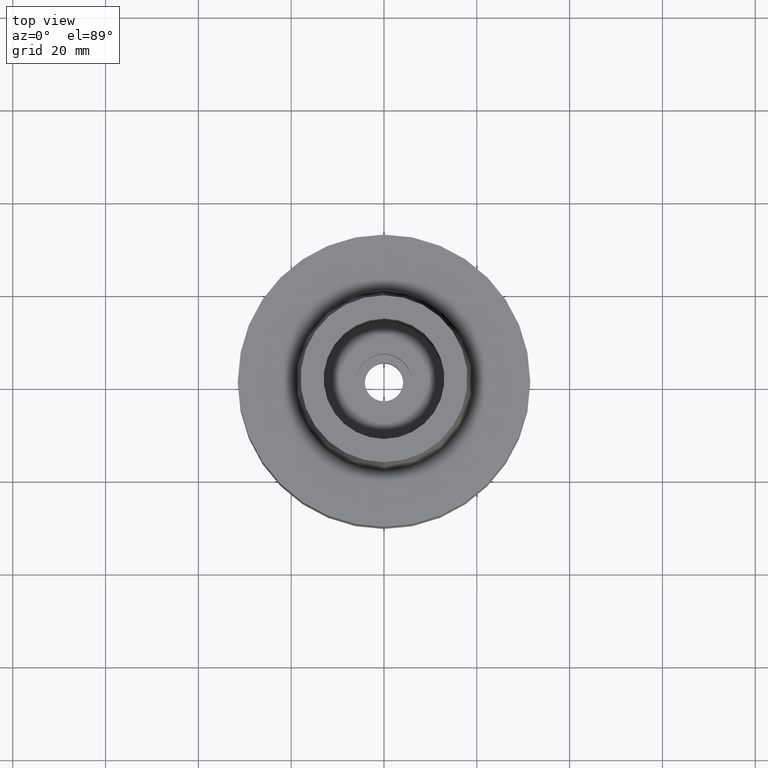
[diagram: clean part render]
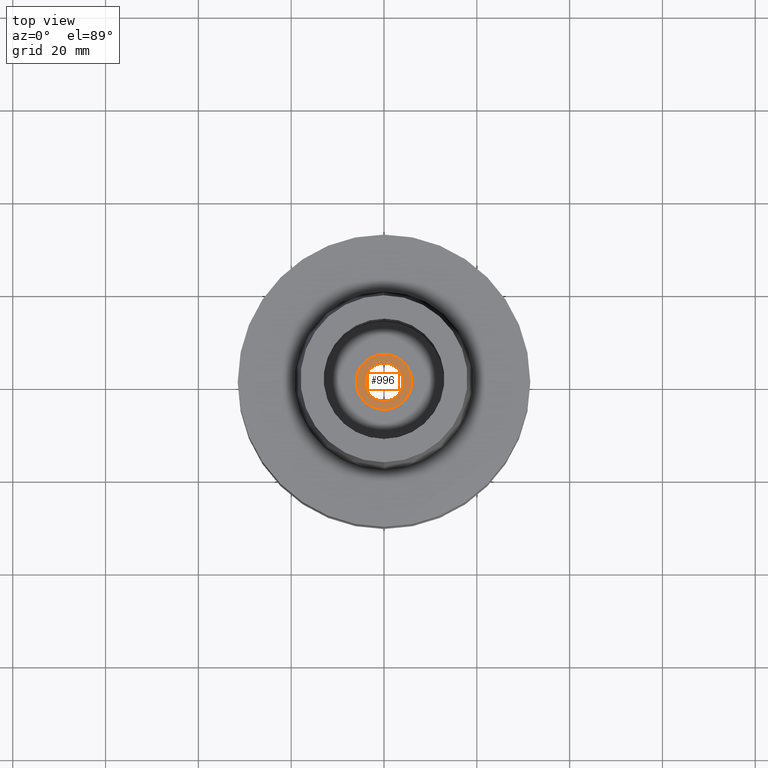
[diagram: same view with one face highlighted and labeled with its STEP entity id]
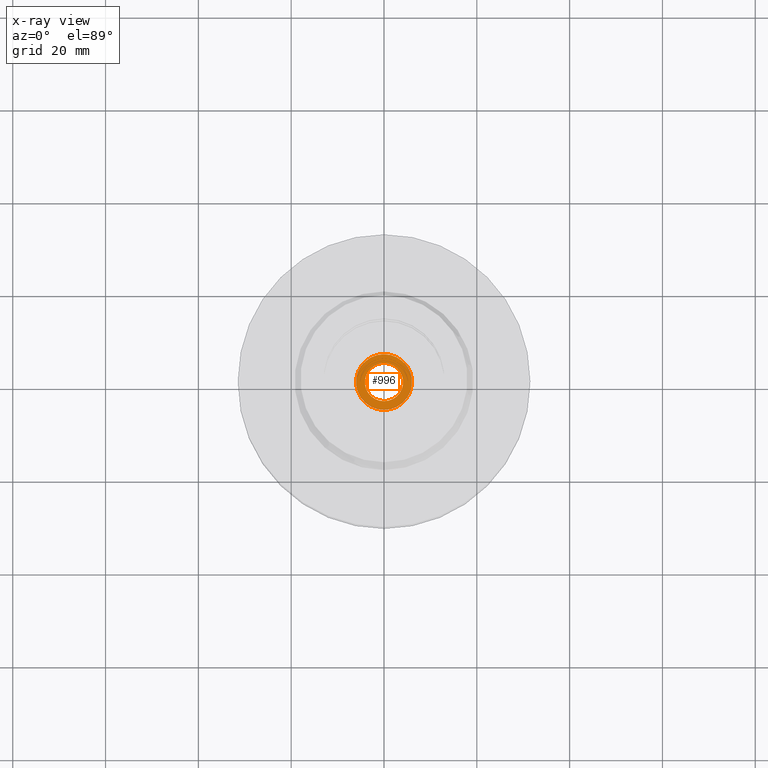
[diagram: x-ray of the same camera — body ghosted, the highlighted face saturated]
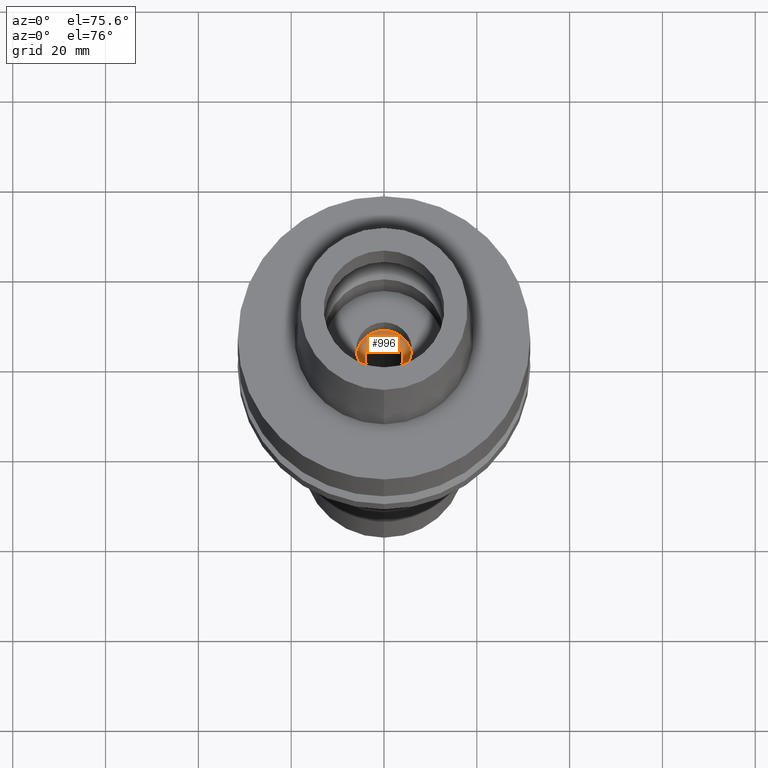
[diagram: same view with one face highlighted and labeled with its STEP entity id]
A machine part, top view. The second image highlights one B-rep face of the part: STEP entity #996.
The next image is the same camera in x-ray: the body ghosted, the highlighted face saturated — about 0% of this face is hidden behind the body in this view.
A second angle (auxiliary view) of the same face is appended — the face is thin or edge-on in the first view.
In plain terms, the highlighted planar face has unit normal (0, 0, 1).
Its self-contained STEP definition (entity closure, byte-faithful):
#56 = CIRCLE ( 'NONE', #1690, 4.125000000000000000 ) ;
#113 = CIRCLE ( 'NONE', #955, 6.000000000000000000 ) ;
#166 = DIRECTION ( 'NONE',  ( 0.0000000000000000000, 0.0000000000000000000, -1.000000000000000000 ) ) ;
#215 = DIRECTION ( 'NONE',  ( 0.0000000000000000000, 1.000000000000000000, 0.0000000000000000000 ) ) ;
#430 = ORIENTED_EDGE ( 'NONE', *, *, #561, .F. ) ;
#561 = EDGE_CURVE ( 'NONE', #859, #2364, #56, .T. ) ;
#700 = CARTESIAN_POINT ( 'NONE',  ( 0.0000000000000000000, -6.000000000000000000, -16.94999999999999929 ) ) ;
#777 = CARTESIAN_POINT ( 'NONE',  ( 0.0000000000000000000, 0.0000000000000000000, -16.94999999999999929 ) ) ;
#859 = VERTEX_POINT ( 'NONE', #1255 ) ;
#904 = DIRECTION ( 'NONE',  ( 1.000000000000000000, 0.0000000000000000000, 0.0000000000000000000 ) ) ;
#955 = AXIS2_PLACEMENT_3D ( 'NONE', #1945, #1318, #215 ) ;
#961 = EDGE_CURVE ( 'NONE', #2864, #2251, #113, .T. ) ;
#996 = ADVANCED_FACE ( 'NONE', ( #1984, #1728 ), #2428, .T. ) ;
#1026 = EDGE_LOOP ( 'NONE', ( #1595, #1059 ) ) ;
#1059 = ORIENTED_EDGE ( 'NONE', *, *, #1908, .F. ) ;
#1067 = DIRECTION ( 'NONE',  ( 0.0000000000000000000, -1.000000000000000000, 0.0000000000000000000 ) ) ;
#1141 = EDGE_LOOP ( 'NONE', ( #2022, #430 ) ) ;
#1255 = CARTESIAN_POINT ( 'NONE',  ( 0.0000000000000000000, -4.125000000000000000, -16.94999999999999929 ) ) ;
#1318 = DIRECTION ( 'NONE',  ( 0.0000000000000000000, 0.0000000000000000000, -1.000000000000000000 ) ) ;
#1333 = DIRECTION ( 'NONE',  ( 0.0000000000000000000, 0.0000000000000000000, 1.000000000000000000 ) ) ;
#1337 = EDGE_CURVE ( 'NONE', #2364, #859, #2176, .T. ) ;
#1397 = AXIS2_PLACEMENT_3D ( 'NONE', #2159, #166, #1067 ) ;
#1481 = DIRECTION ( 'NONE',  ( 0.0000000000000000000, 0.0000000000000000000, 1.000000000000000000 ) ) ;
#1595 = ORIENTED_EDGE ( 'NONE', *, *, #961, .F. ) ;
#1610 = DIRECTION ( 'NONE',  ( 0.0000000000000000000, 0.0000000000000000000, 1.000000000000000000 ) ) ;
#1690 = AXIS2_PLACEMENT_3D ( 'NONE', #777, #1610, #2049 ) ;
#1728 = FACE_BOUND ( 'NONE', #1141, .T. ) ;
#1770 = AXIS2_PLACEMENT_3D ( 'NONE', #1854, #1481, #1911 ) ;
#1854 = CARTESIAN_POINT ( 'NONE',  ( 0.0000000000000000000, 0.0000000000000000000, -16.94999999999999929 ) ) ;
#1908 = EDGE_CURVE ( 'NONE', #2251, #2864, #2720, .T. ) ;
#1911 = DIRECTION ( 'NONE',  ( 0.0000000000000000000, 1.000000000000000000, 0.0000000000000000000 ) ) ;
#1945 = CARTESIAN_POINT ( 'NONE',  ( 0.0000000000000000000, 0.0000000000000000000, -16.94999999999999929 ) ) ;
#1984 = FACE_OUTER_BOUND ( 'NONE', #1026, .T. ) ;
#2022 = ORIENTED_EDGE ( 'NONE', *, *, #1337, .F. ) ;
#2049 = DIRECTION ( 'NONE',  ( 0.0000000000000000000, -1.000000000000000000, 0.0000000000000000000 ) ) ;
#2159 = CARTESIAN_POINT ( 'NONE',  ( 0.0000000000000000000, 0.0000000000000000000, -16.94999999999999929 ) ) ;
#2176 = CIRCLE ( 'NONE', #1770, 4.125000000000000000 ) ;
#2185 = CARTESIAN_POINT ( 'NONE',  ( 0.0000000000000000000, 0.0000000000000000000, -16.94999999999999929 ) ) ;
#2251 = VERTEX_POINT ( 'NONE', #700 ) ;
#2304 = CARTESIAN_POINT ( 'NONE',  ( 0.0000000000000000000, 4.125000000000000000, -16.94999999999999929 ) ) ;
#2364 = VERTEX_POINT ( 'NONE', #2304 ) ;
#2428 = PLANE ( 'NONE',  #2509 ) ;
#2499 = CARTESIAN_POINT ( 'NONE',  ( 0.0000000000000000000, 6.000000000000000000, -16.94999999999999929 ) ) ;
#2509 = AXIS2_PLACEMENT_3D ( 'NONE', #2185, #1333, #904 ) ;
#2720 = CIRCLE ( 'NONE', #1397, 6.000000000000000000 ) ;
#2864 = VERTEX_POINT ( 'NONE', #2499 ) ;